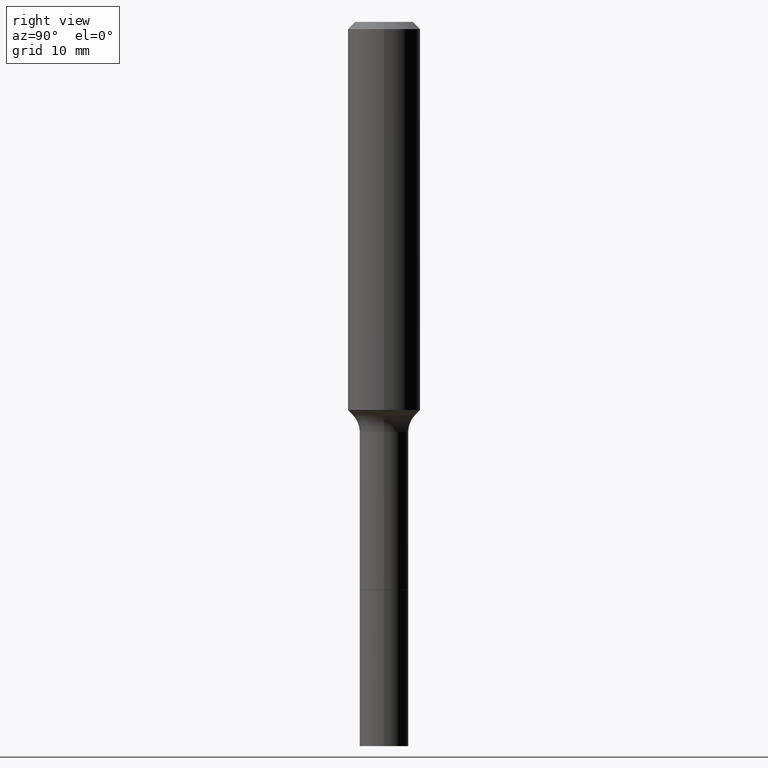
[diagram: clean part render]
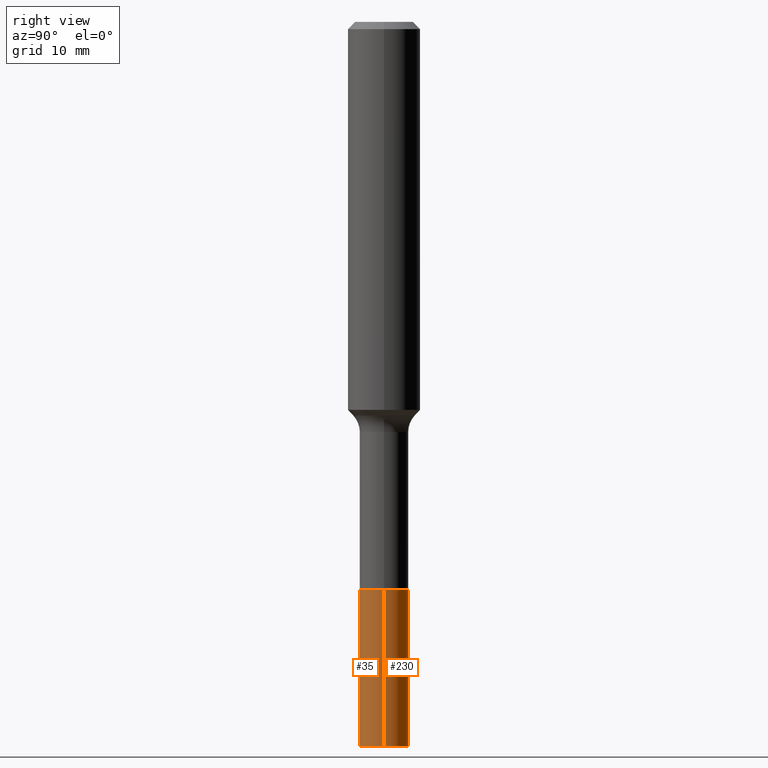
[diagram: same view with one multi-face feature highlighted, each face labeled with its STEP entity id]
A machine part, right view. The highlighted faces form ONE feature: a constant-radius fillet chain: 2 tangent blend faces with common blend radius 2.0193 mm. The faces share edges in the B-rep.
Their STEP definitions:
[1] entity #35 (Cylinder):
#7 = EDGE_CURVE ( 'NONE', #187, #479, #465, .T. ) ;
#9 = CARTESIAN_POINT ( 'NONE',  ( 0.07950000000000000122, -7.022067268681332845E-15, -1.852200000000000069 ) ) ;
#24 = VERTEX_POINT ( 'NONE', #9 ) ;
#35 = ADVANCED_FACE ( 'NONE', ( #43 ), #88, .T. ) ;
#43 = FACE_OUTER_BOUND ( 'NONE', #456, .T. ) ;
#54 = CARTESIAN_POINT ( 'NONE',  ( -0.07950000000000007061, -5.902040260875994445E-15, -1.852200000000000069 ) ) ;
#79 = ORIENTED_EDGE ( 'NONE', *, *, #410, .F. ) ;
#86 = DIRECTION ( 'NONE',  ( -2.445468806185136597E-29, 3.491481338843145583E-15, 1.000000000000000000 ) ) ;
#88 = CYLINDRICAL_SURFACE ( 'NONE', #250, 0.07950000000000007061 ) ;
#91 = DIRECTION ( 'NONE',  ( -2.445468806185136597E-29, 3.491481338843145583E-15, 1.000000000000000000 ) ) ;
#94 = AXIS2_PLACEMENT_3D ( 'NONE', #368, #91, #213 ) ;
#106 = LINE ( 'NONE', #467, #505 ) ;
#131 = DIRECTION ( 'NONE',  ( -2.445468806185136877E-29, 3.491481338843145188E-15, 1.000000000000000000 ) ) ;
#140 = CIRCLE ( 'NONE', #94, 0.07950000000000000122 ) ;
#147 = CARTESIAN_POINT ( 'NONE',  ( -0.07950000000000000122, -6.792368002280996764E-15, -1.852200000000000069 ) ) ;
#170 = CARTESIAN_POINT ( 'NONE',  ( 5.776686413970529753E-29, -8.247577218615279626E-15, -2.362200000000000077 ) ) ;
#187 = VERTEX_POINT ( 'NONE', #346 ) ;
#190 = ORIENTED_EDGE ( 'NONE', *, *, #222, .T. ) ;
#205 = CARTESIAN_POINT ( 'NONE',  ( 4.529497322816109909E-29, -6.466921735805274989E-15, -1.852200000000000069 ) ) ;
#211 = DIRECTION ( 'NONE',  ( 1.000000000000000000, -6.982962677686254089E-15, 0.000000000000000000 ) ) ;
#213 = DIRECTION ( 'NONE',  ( 1.000000000000000000, -6.982962677686265922E-15, 0.000000000000000000 ) ) ;
#222 = EDGE_CURVE ( 'NONE', #479, #24, #106, .T. ) ;
#225 = AXIS2_PLACEMENT_3D ( 'NONE', #170, #86, #211 ) ;
#237 = VECTOR ( 'NONE', #131, 39.37007874015748143 ) ;
#250 = AXIS2_PLACEMENT_3D ( 'NONE', #205, #255, #294 ) ;
#255 = DIRECTION ( 'NONE',  ( -2.445468806185136597E-29, 3.491481338843145583E-15, 1.000000000000000000 ) ) ;
#266 = ORIENTED_EDGE ( 'NONE', *, *, #434, .F. ) ;
#294 = DIRECTION ( 'NONE',  ( 1.000000000000000000, -6.982962677686272233E-15, 0.000000000000000000 ) ) ;
#309 = VERTEX_POINT ( 'NONE', #147 ) ;
#332 = LINE ( 'NONE', #54, #237 ) ;
#346 = CARTESIAN_POINT ( 'NONE',  ( -0.07950000000000014000, -6.792368002280995975E-15, -2.362200000000000077 ) ) ;
#347 = ORIENTED_EDGE ( 'NONE', *, *, #7, .T. ) ;
#366 = CARTESIAN_POINT ( 'NONE',  ( 0.07950000000000014000, -8.802722751491336694E-15, -2.362200000000000077 ) ) ;
#368 = CARTESIAN_POINT ( 'NONE',  ( 4.529497322816109909E-29, -6.466921735805274989E-15, -1.852200000000000069 ) ) ;
#410 = EDGE_CURVE ( 'NONE', #187, #309, #332, .T. ) ;
#432 = DIRECTION ( 'NONE',  ( -2.445468806185136877E-29, 3.491481338843145188E-15, 1.000000000000000000 ) ) ;
#434 = EDGE_CURVE ( 'NONE', #309, #24, #140, .T. ) ;
#456 = EDGE_LOOP ( 'NONE', ( #79, #347, #190, #266 ) ) ;
#465 = CIRCLE ( 'NONE', #225, 0.07950000000000014000 ) ;
#467 = CARTESIAN_POINT ( 'NONE',  ( 0.07950000000000007061, -7.022067268681333634E-15, -1.852200000000000069 ) ) ;
#479 = VERTEX_POINT ( 'NONE', #366 ) ;
#505 = VECTOR ( 'NONE', #432, 39.37007874015748143 ) ;
[2] entity #230 (Cylinder):
#9 = CARTESIAN_POINT ( 'NONE',  ( 0.07950000000000000122, -7.022067268681332845E-15, -1.852200000000000069 ) ) ;
#24 = VERTEX_POINT ( 'NONE', #9 ) ;
#33 = CYLINDRICAL_SURFACE ( 'NONE', #319, 0.07950000000000007061 ) ;
#40 = DIRECTION ( 'NONE',  ( 1.000000000000000000, -6.982962677686254089E-15, 0.000000000000000000 ) ) ;
#54 = CARTESIAN_POINT ( 'NONE',  ( -0.07950000000000007061, -5.902040260875994445E-15, -1.852200000000000069 ) ) ;
#64 = CARTESIAN_POINT ( 'NONE',  ( 4.529497322816109909E-29, -6.466921735805274989E-15, -1.852200000000000069 ) ) ;
#74 = DIRECTION ( 'NONE',  ( -2.445468806185136597E-29, 3.491481338843145583E-15, 1.000000000000000000 ) ) ;
#101 = ORIENTED_EDGE ( 'NONE', *, *, #222, .F. ) ;
#106 = LINE ( 'NONE', #467, #505 ) ;
#131 = DIRECTION ( 'NONE',  ( -2.445468806185136877E-29, 3.491481338843145188E-15, 1.000000000000000000 ) ) ;
#133 = CIRCLE ( 'NONE', #184, 0.07950000000000014000 ) ;
#145 = EDGE_LOOP ( 'NONE', ( #393, #284, #436, #101 ) ) ;
#147 = CARTESIAN_POINT ( 'NONE',  ( -0.07950000000000000122, -6.792368002280996764E-15, -1.852200000000000069 ) ) ;
#151 = FACE_OUTER_BOUND ( 'NONE', #145, .T. ) ;
#184 = AXIS2_PLACEMENT_3D ( 'NONE', #242, #395, #40 ) ;
#187 = VERTEX_POINT ( 'NONE', #346 ) ;
#189 = EDGE_CURVE ( 'NONE', #24, #309, #358, .T. ) ;
#195 = DIRECTION ( 'NONE',  ( 1.000000000000000000, -6.982962677686265922E-15, 0.000000000000000000 ) ) ;
#222 = EDGE_CURVE ( 'NONE', #479, #24, #106, .T. ) ;
#230 = ADVANCED_FACE ( 'NONE', ( #151 ), #33, .T. ) ;
#237 = VECTOR ( 'NONE', #131, 39.37007874015748143 ) ;
#242 = CARTESIAN_POINT ( 'NONE',  ( 5.776686413970529753E-29, -8.247577218615279626E-15, -2.362200000000000077 ) ) ;
#284 = ORIENTED_EDGE ( 'NONE', *, *, #410, .T. ) ;
#309 = VERTEX_POINT ( 'NONE', #147 ) ;
#317 = DIRECTION ( 'NONE',  ( 1.000000000000000000, -6.982962677686272233E-15, 0.000000000000000000 ) ) ;
#319 = AXIS2_PLACEMENT_3D ( 'NONE', #348, #422, #317 ) ;
#332 = LINE ( 'NONE', #54, #237 ) ;
#346 = CARTESIAN_POINT ( 'NONE',  ( -0.07950000000000014000, -6.792368002280995975E-15, -2.362200000000000077 ) ) ;
#348 = CARTESIAN_POINT ( 'NONE',  ( 4.529497322816109909E-29, -6.466921735805274989E-15, -1.852200000000000069 ) ) ;
#358 = CIRCLE ( 'NONE', #475, 0.07950000000000000122 ) ;
#366 = CARTESIAN_POINT ( 'NONE',  ( 0.07950000000000014000, -8.802722751491336694E-15, -2.362200000000000077 ) ) ;
#377 = EDGE_CURVE ( 'NONE', #479, #187, #133, .T. ) ;
#393 = ORIENTED_EDGE ( 'NONE', *, *, #377, .T. ) ;
#395 = DIRECTION ( 'NONE',  ( -2.445468806185136597E-29, 3.491481338843145583E-15, 1.000000000000000000 ) ) ;
#410 = EDGE_CURVE ( 'NONE', #187, #309, #332, .T. ) ;
#422 = DIRECTION ( 'NONE',  ( -2.445468806185136597E-29, 3.491481338843145583E-15, 1.000000000000000000 ) ) ;
#432 = DIRECTION ( 'NONE',  ( -2.445468806185136877E-29, 3.491481338843145188E-15, 1.000000000000000000 ) ) ;
#436 = ORIENTED_EDGE ( 'NONE', *, *, #189, .F. ) ;
#467 = CARTESIAN_POINT ( 'NONE',  ( 0.07950000000000007061, -7.022067268681333634E-15, -1.852200000000000069 ) ) ;
#475 = AXIS2_PLACEMENT_3D ( 'NONE', #64, #74, #195 ) ;
#479 = VERTEX_POINT ( 'NONE', #366 ) ;
#505 = VECTOR ( 'NONE', #432, 39.37007874015748143 ) ;